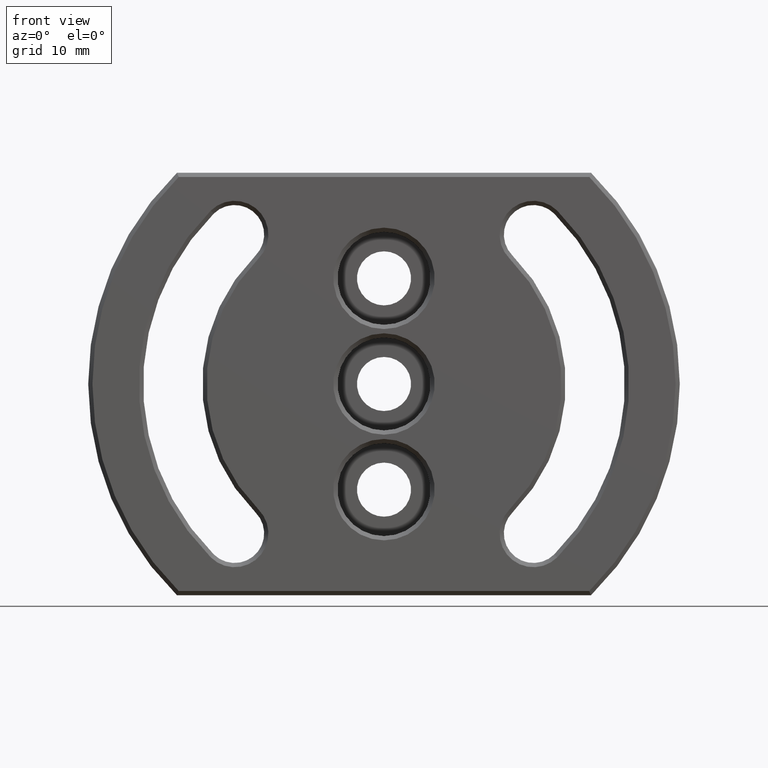
[diagram: clean part render]
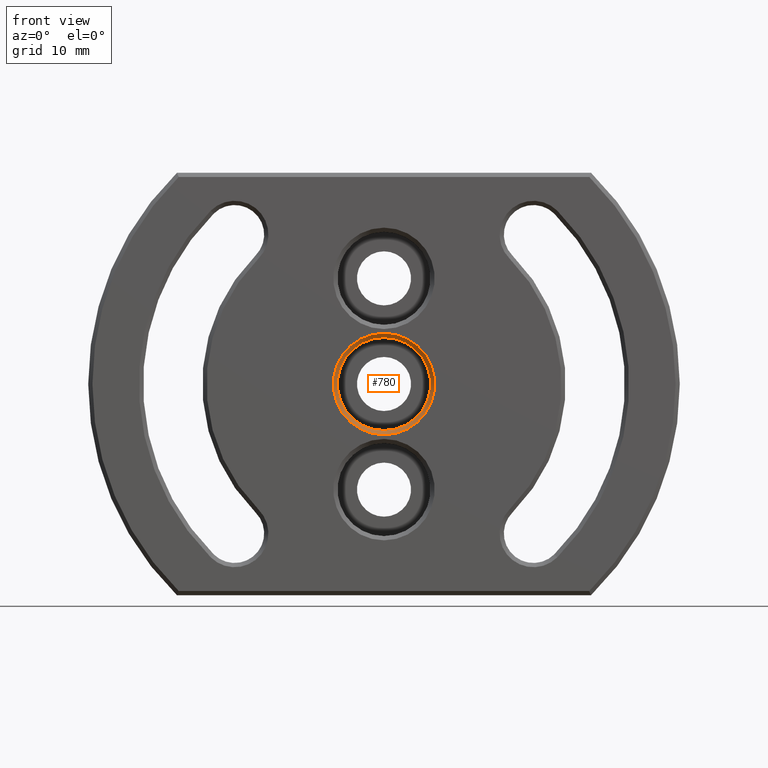
[diagram: same view with one face highlighted and labeled with its STEP entity id]
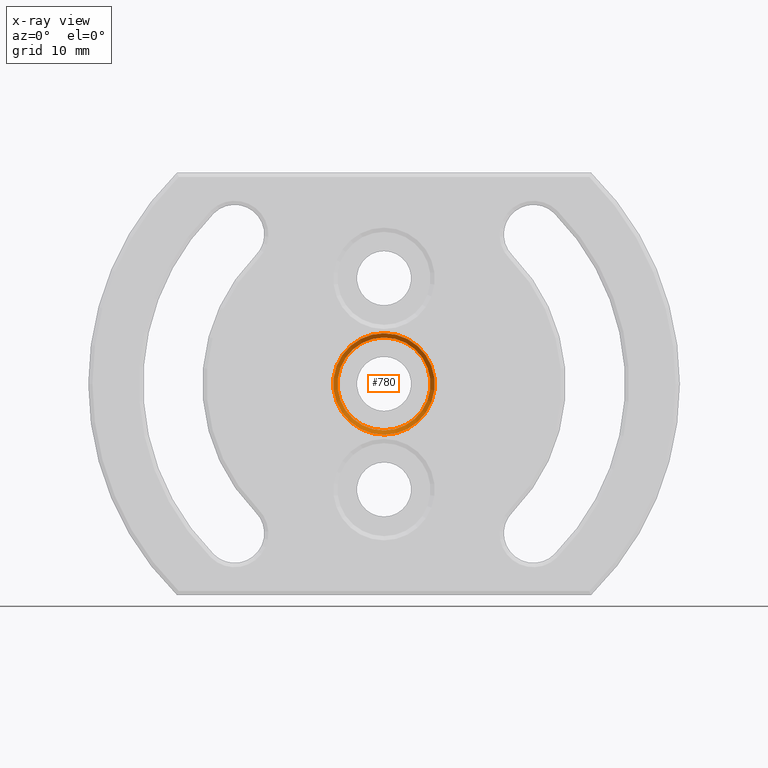
[diagram: x-ray of the same camera — body ghosted, the highlighted face saturated]
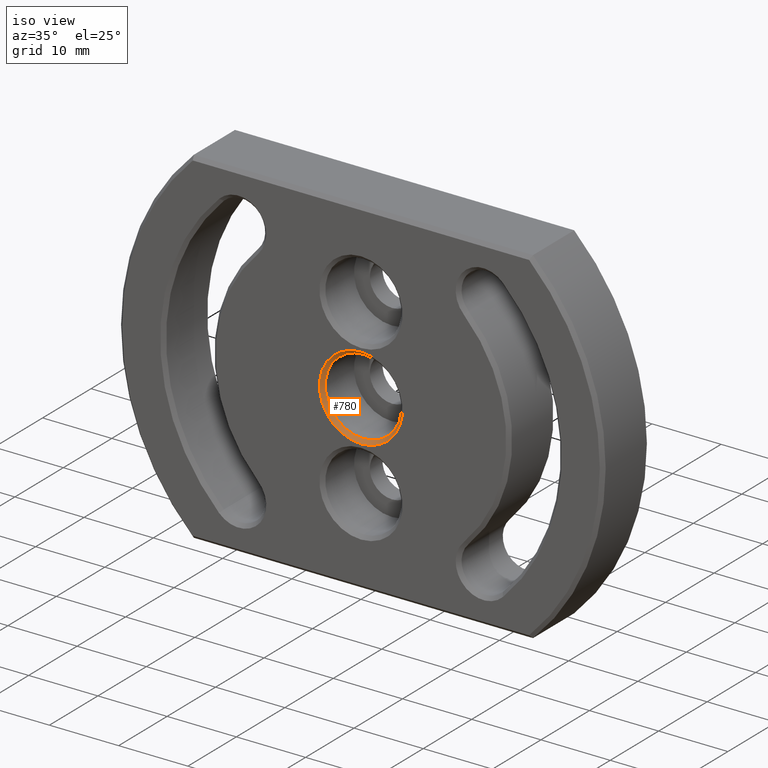
[diagram: same view with one face highlighted and labeled with its STEP entity id]
A machine part, front view. The second image highlights one B-rep face of the part: STEP entity #780.
The next image is the same camera in x-ray: the body ghosted, the highlighted face saturated — about 0% of this face is hidden behind the body in this view.
A second angle (iso view) of the same face is appended — the face is thin or edge-on in the first view.
In plain terms, the highlighted conical surface has half-angle 45 deg.
Its self-contained STEP definition (entity closure, byte-faithful):
#38 = DIRECTION ( 'NONE',  ( 0.0000000000000000000, 0.0000000000000000000, -1.000000000000000000 ) ) ;
#46 = CARTESIAN_POINT ( 'NONE',  ( 0.0000000000000000000, 0.4999999999999865700, 0.0000000000000000000 ) ) ;
#76 = DIRECTION ( 'NONE',  ( 0.0000000000000000000, 0.0000000000000000000, 1.000000000000000000 ) ) ;
#94 = CARTESIAN_POINT ( 'NONE',  ( 0.0000000000000000000, 0.0000000000000000000, 5.999999999999984900 ) ) ;
#95 = DIRECTION ( 'NONE',  ( 0.0000000000000000000, 0.0000000000000000000, 1.000000000000000000 ) ) ;
#166 = CARTESIAN_POINT ( 'NONE',  ( 0.0000000000000000000, 0.0000000000000000000, 0.0000000000000000000 ) ) ;
#220 = DIRECTION ( 'NONE',  ( 0.0000000000000000000, -1.000000000000000000, 0.0000000000000000000 ) ) ;
#222 = CARTESIAN_POINT ( 'NONE',  ( 0.0000000000000000000, 0.4999999999999865700, 5.499999999999995600 ) ) ;
#254 = DIRECTION ( 'NONE',  ( 0.0000000000000000000, -1.000000000000000000, 0.0000000000000000000 ) ) ;
#323 = CARTESIAN_POINT ( 'NONE',  ( 0.0000000000000000000, 0.4999999999999865700, 0.0000000000000000000 ) ) ;
#425 = DIRECTION ( 'NONE',  ( 0.0000000000000000000, 1.000000000000000000, 0.0000000000000000000 ) ) ;
#560 = EDGE_CURVE ( 'NONE', #1031, #1031, #1053, .T. ) ;
#592 = AXIS2_PLACEMENT_3D ( 'NONE', #166, #425, #76 ) ;
#726 = AXIS2_PLACEMENT_3D ( 'NONE', #323, #254, #95 ) ;
#744 = AXIS2_PLACEMENT_3D ( 'NONE', #46, #220, #38 ) ;
#748 = EDGE_CURVE ( 'NONE', #998, #998, #1132, .T. ) ;
#780 = ADVANCED_FACE ( 'NONE', ( #1245, #845 ), #835, .F. ) ;
#835 = CONICAL_SURFACE ( 'NONE', #744, 5.499999999999995600, 0.7853981633974509400 ) ;
#845 = FACE_BOUND ( 'NONE', #1073, .T. ) ;
#998 = VERTEX_POINT ( 'NONE', #222 ) ;
#1031 = VERTEX_POINT ( 'NONE', #94 ) ;
#1053 = CIRCLE ( 'NONE', #592, 5.999999999999984900 ) ;
#1073 = EDGE_LOOP ( 'NONE', ( #1160 ) ) ;
#1132 = CIRCLE ( 'NONE', #726, 5.499999999999995600 ) ;
#1160 = ORIENTED_EDGE ( 'NONE', *, *, #748, .F. ) ;
#1245 = FACE_OUTER_BOUND ( 'NONE', #1438, .T. ) ;
#1424 = ORIENTED_EDGE ( 'NONE', *, *, #560, .F. ) ;
#1438 = EDGE_LOOP ( 'NONE', ( #1424 ) ) ;